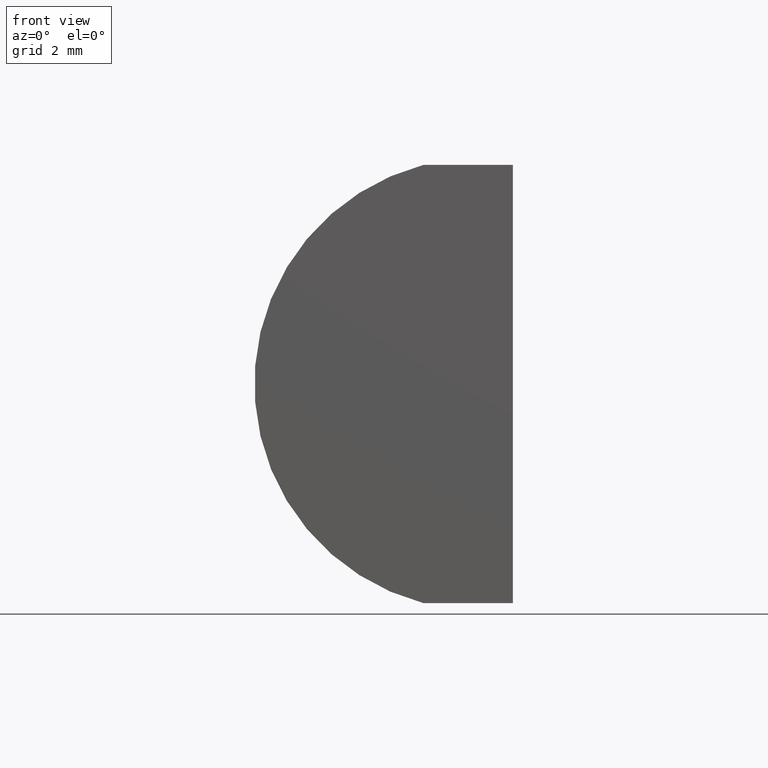
[diagram: clean part render]
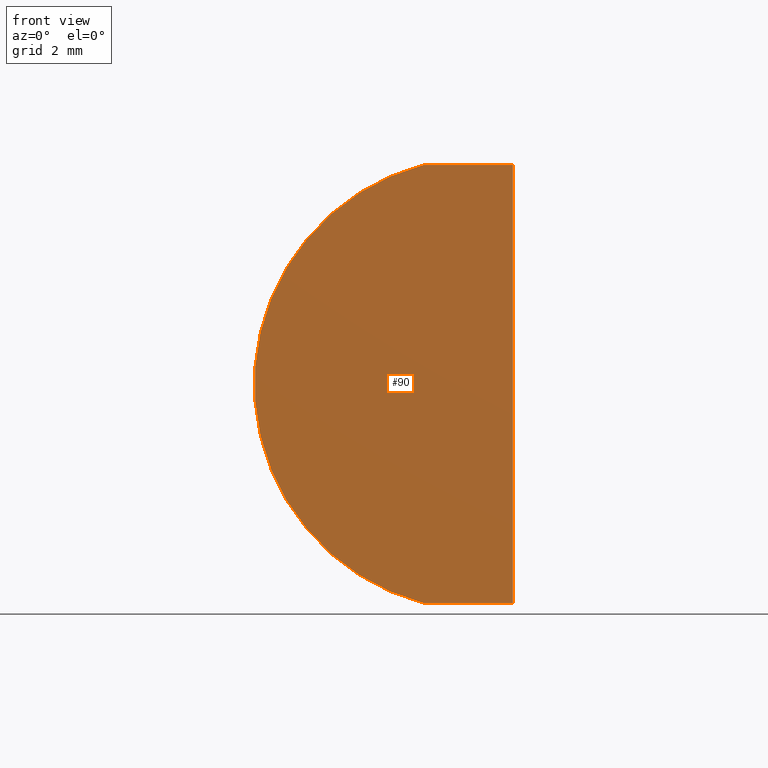
[diagram: same view with one face highlighted and labeled with its STEP entity id]
A machine part, front view. The second image highlights one B-rep face of the part: STEP entity #90.
In plain terms, the highlighted planar face has unit normal (0, 1, 0).
Its self-contained STEP definition (entity closure, byte-faithful):
#2 = ORIENTED_EDGE ( 'NONE', *, *, #134, .F. ) ;
#8 = CARTESIAN_POINT ( 'NONE',  ( 3.040327914802600800, 0.0000000000000000000, -5.000000000000000000 ) ) ;
#10 = VECTOR ( 'NONE', #74, 1000.000000000000000 ) ;
#20 = DIRECTION ( 'NONE',  ( 1.000000000000000000, 0.0000000000000000000, 0.0000000000000000000 ) ) ;
#26 = CARTESIAN_POINT ( 'NONE',  ( 4.355204334851265500, 0.0000000000000000000, 4.286263797015675000E-017 ) ) ;
#27 = ORIENTED_EDGE ( 'NONE', *, *, #165, .F. ) ;
#28 = LINE ( 'NONE', #71, #160 ) ;
#30 = EDGE_LOOP ( 'NONE', ( #27, #47, #85, #2 ) ) ;
#34 = CARTESIAN_POINT ( 'NONE',  ( 3.040327914802600800, 0.0000000000000000000, -5.000000000000000000 ) ) ;
#41 = DIRECTION ( 'NONE',  ( 0.0000000000000000000, 1.000000000000000000, 0.0000000000000000000 ) ) ;
#42 = VERTEX_POINT ( 'NONE', #169 ) ;
#47 = ORIENTED_EDGE ( 'NONE', *, *, #182, .F. ) ;
#53 = VERTEX_POINT ( 'NONE', #87 ) ;
#71 = CARTESIAN_POINT ( 'NONE',  ( 5.085204334851264100, 0.0000000000000000000, -5.000000000000001800 ) ) ;
#74 = DIRECTION ( 'NONE',  ( -1.000000000000000000, -0.0000000000000000000, 8.483268030131251300E-016 ) ) ;
#78 = VECTOR ( 'NONE', #20, 1000.000000000000000 ) ;
#84 = DIRECTION ( 'NONE',  ( -3.469446951953613700E-016, -0.0000000000000000000, -1.000000000000000000 ) ) ;
#85 = ORIENTED_EDGE ( 'NONE', *, *, #116, .F. ) ;
#86 = CIRCLE ( 'NONE', #99, 5.169999999999999000 ) ;
#87 = CARTESIAN_POINT ( 'NONE',  ( 5.085204334851264100, 0.0000000000000000000, -5.000000000000001800 ) ) ;
#90 = ADVANCED_FACE ( 'NONE', ( #112 ), #118, .F. ) ;
#97 = CARTESIAN_POINT ( 'NONE',  ( 3.040327914802600300, 0.0000000000000000000, 5.000000000000000000 ) ) ;
#98 = DIRECTION ( 'NONE',  ( 0.0000000000000000000, -0.0000000000000000000, 1.000000000000000000 ) ) ;
#99 = AXIS2_PLACEMENT_3D ( 'NONE', #26, #41, #143 ) ;
#100 = DIRECTION ( 'NONE',  ( 0.0000000000000000000, 1.000000000000000000, 0.0000000000000000000 ) ) ;
#106 = CARTESIAN_POINT ( 'NONE',  ( 4.355204334851265500, 0.0000000000000000000, 4.286263797015675000E-017 ) ) ;
#112 = FACE_OUTER_BOUND ( 'NONE', #30, .T. ) ;
#116 = EDGE_CURVE ( 'NONE', #197, #53, #28, .T. ) ;
#118 = PLANE ( 'NONE',  #191 ) ;
#133 = LINE ( 'NONE', #8, #10 ) ;
#134 = EDGE_CURVE ( 'NONE', #42, #197, #190, .T. ) ;
#136 = VERTEX_POINT ( 'NONE', #34 ) ;
#143 = DIRECTION ( 'NONE',  ( 0.0000000000000000000, 0.0000000000000000000, 1.000000000000000000 ) ) ;
#160 = VECTOR ( 'NONE', #84, 1000.000000000000000 ) ;
#165 = EDGE_CURVE ( 'NONE', #136, #42, #86, .T. ) ;
#169 = CARTESIAN_POINT ( 'NONE',  ( 3.040327914802600300, 0.0000000000000000000, 5.000000000000000000 ) ) ;
#179 = CARTESIAN_POINT ( 'NONE',  ( 5.085204334851267700, 0.0000000000000000000, 5.000000000000000000 ) ) ;
#182 = EDGE_CURVE ( 'NONE', #53, #136, #133, .T. ) ;
#190 = LINE ( 'NONE', #97, #78 ) ;
#191 = AXIS2_PLACEMENT_3D ( 'NONE', #106, #100, #98 ) ;
#197 = VERTEX_POINT ( 'NONE', #179 ) ;